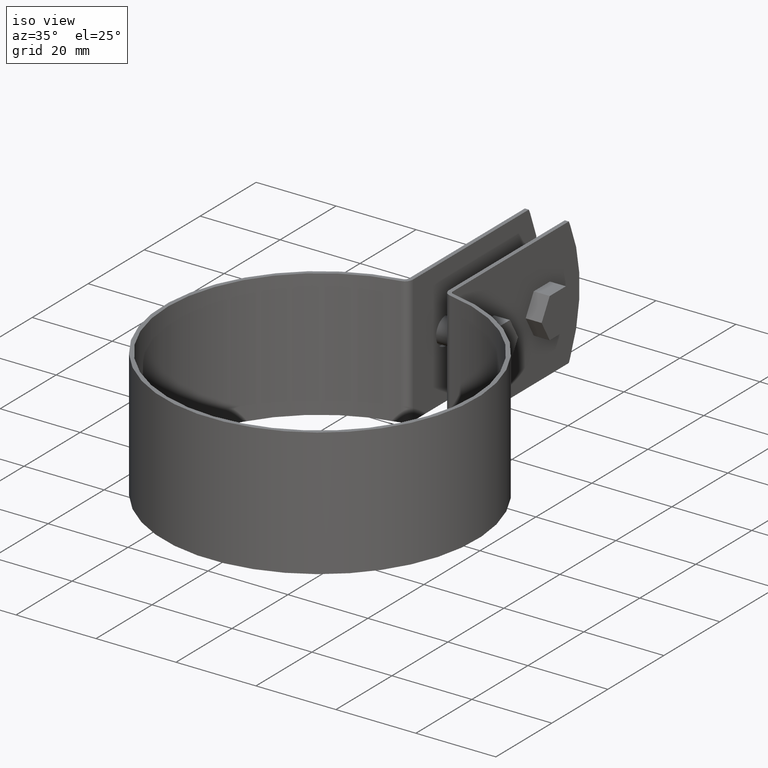
[diagram: clean part render]
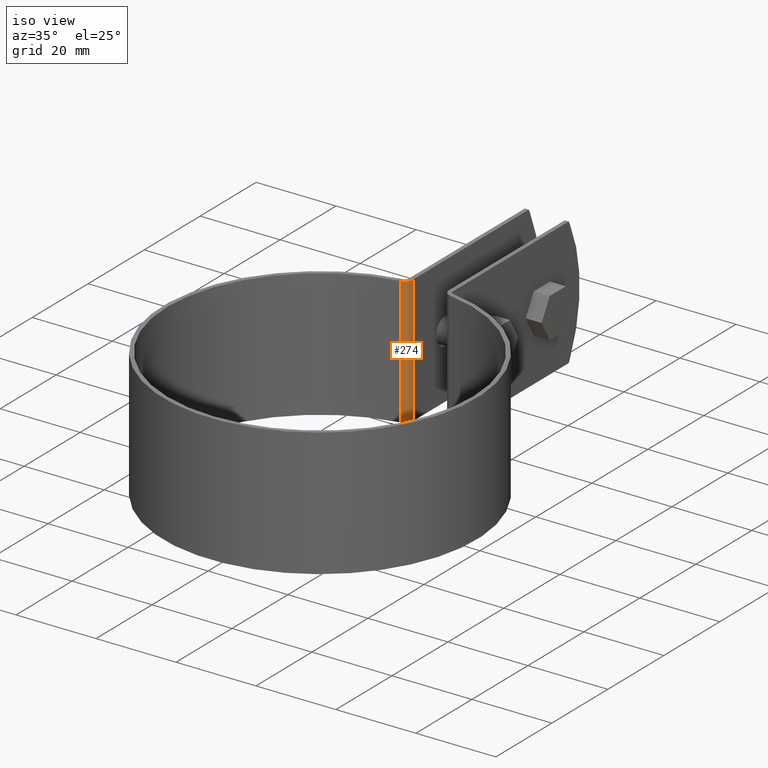
[diagram: same view with one face highlighted and labeled with its STEP entity id]
A machine part, iso view. The second image highlights one B-rep face of the part: STEP entity #274.
In plain terms, the highlighted cylindrical surface (edge-blend (fillet) strip) has radius 2 mm, axis along (0, 0, -1).
Its self-contained STEP definition (entity closure, byte-faithful):
#274 = ADVANCED_FACE( '', ( #379 ), #380, .T. );
#379 = FACE_OUTER_BOUND( '', #587, .T. );
#380 = CYLINDRICAL_SURFACE( '', #588, 2.00000000000000 );
#587 = EDGE_LOOP( '', ( #841, #842, #843, #844 ) );
#588 = AXIS2_PLACEMENT_3D( '', #845, #846, #847 );
#841 = ORIENTED_EDGE( '', *, *, #1484, .T. );
#842 = ORIENTED_EDGE( '', *, *, #1485, .F. );
#843 = ORIENTED_EDGE( '', *, *, #1463, .F. );
#844 = ORIENTED_EDGE( '', *, *, #1453, .T. );
#845 = CARTESIAN_POINT( '', ( -6.50000000000000, 39.6203546172924, -16.0000000000000 ) );
#846 = DIRECTION( '', ( 0.000000000000000, 0.000000000000000, -1.00000000000000 ) );
#847 = DIRECTION( '', ( -1.00000000000000, 6.06692130572647E-017, 0.000000000000000 ) );
#1453 = EDGE_CURVE( '', #1661, #1659, #1662, .T. );
#1463 = EDGE_CURVE( '', #1661, #1680, #1681, .T. );
#1484 = EDGE_CURVE( '', #1659, #1716, #1717, .T. );
#1485 = EDGE_CURVE( '', #1680, #1716, #1718, .T. );
#1659 = VERTEX_POINT( '', #2001 );
#1661 = VERTEX_POINT( '', #2004 );
#1662 = LINE( '', #2005, #2006 );
#1680 = VERTEX_POINT( '', #2029 );
#1681 = CIRCLE( '', #2030, 2.00000000000000 );
#1716 = VERTEX_POINT( '', #2077 );
#1717 = CIRCLE( '', #2078, 2.00000000000000 );
#1718 = LINE( '', #2079, #2080 );
#2001 = CARTESIAN_POINT( '', ( -4.50000000000000, 39.6203546172924, 16.0000000000000 ) );
#2004 = CARTESIAN_POINT( '', ( -4.50000000000000, 39.6203546172924, -16.0000000000000 ) );
#2005 = CARTESIAN_POINT( '', ( -4.50000000000000, 39.6203546172924, -16.0000000000000 ) );
#2006 = VECTOR( '', #2563, 1000.00000000000 );
#2029 = CARTESIAN_POINT( '', ( -6.17621419676214, 37.6467379489341, -16.0000000000000 ) );
#2030 = AXIS2_PLACEMENT_3D( '', #2581, #2582, #2583 );
#2077 = CARTESIAN_POINT( '', ( -6.17621419676214, 37.6467379489341, 16.0000000000000 ) );
#2078 = AXIS2_PLACEMENT_3D( '', #2620, #2621, #2622 );
#2079 = CARTESIAN_POINT( '', ( -6.17621419676214, 37.6467379489341, -16.0000000000000 ) );
#2080 = VECTOR( '', #2623, 1000.00000000000 );
#2563 = DIRECTION( '', ( 0.000000000000000, 0.000000000000000, 1.00000000000000 ) );
#2581 = CARTESIAN_POINT( '', ( -6.50000000000000, 39.6203546172924, -16.0000000000000 ) );
#2582 = DIRECTION( '', ( 0.000000000000000, 0.000000000000000, -1.00000000000000 ) );
#2583 = DIRECTION( '', ( 1.00000000000000, -6.06692130572647E-017, 0.000000000000000 ) );
#2620 = CARTESIAN_POINT( '', ( -6.50000000000000, 39.6203546172924, 16.0000000000000 ) );
#2621 = DIRECTION( '', ( 0.000000000000000, 0.000000000000000, -1.00000000000000 ) );
#2622 = DIRECTION( '', ( 1.00000000000000, -6.06692130572647E-017, 0.000000000000000 ) );
#2623 = DIRECTION( '', ( 0.000000000000000, 0.000000000000000, 1.00000000000000 ) );